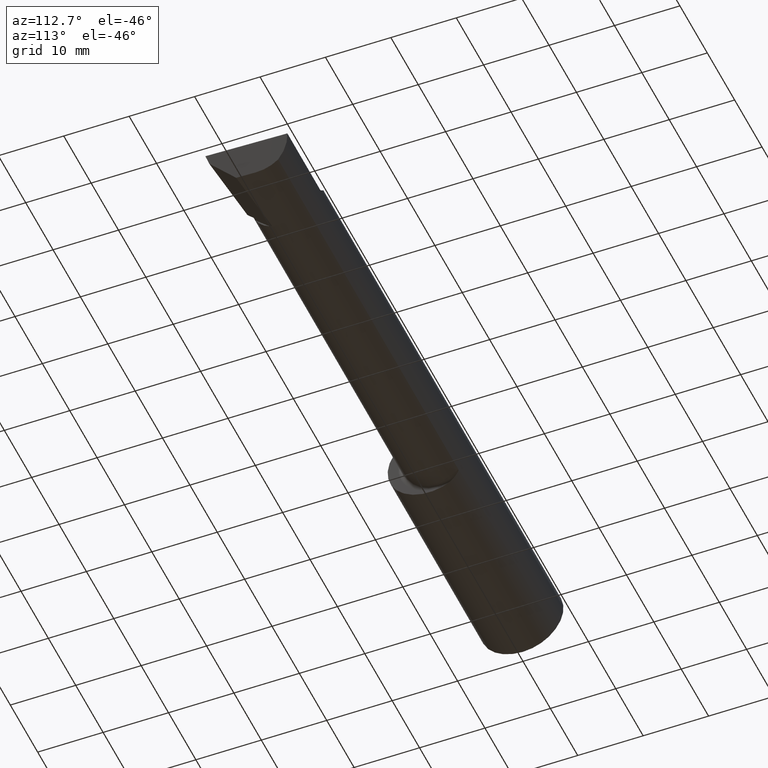
[diagram: clean part render]
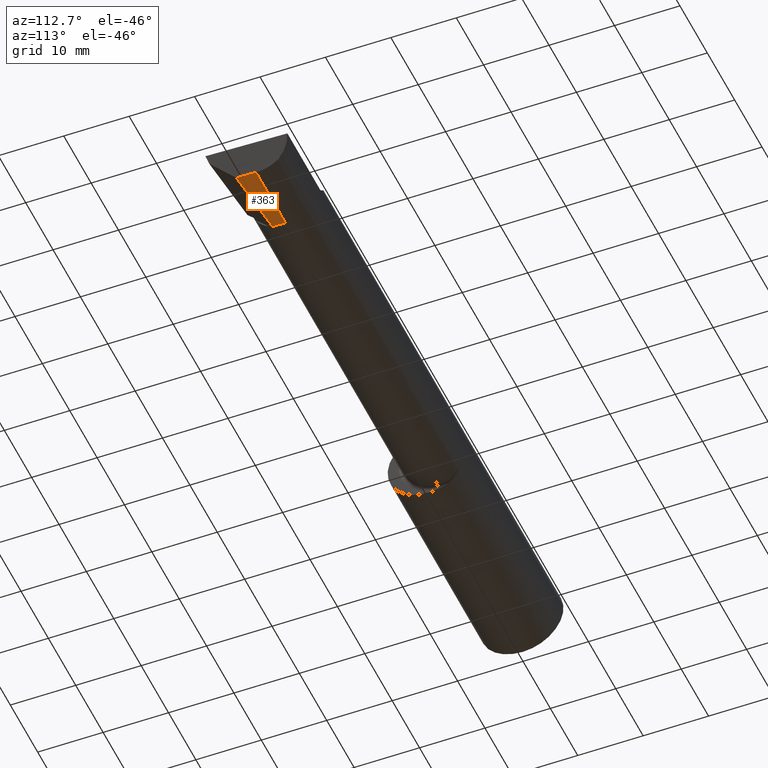
[diagram: same view with one face highlighted and labeled with its STEP entity id]
A machine part, auxiliary view. The second image highlights one B-rep face of the part: STEP entity #363.
In plain terms, the highlighted planar face has unit normal (-0, 0, 1).
Its self-contained STEP definition (entity closure, byte-faithful):
#8 = LINE ( 'NONE', #240, #511 ) ;
#14 = LINE ( 'NONE', #585, #606 ) ;
#36 = LINE ( 'NONE', #327, #710 ) ;
#45 = ORIENTED_EDGE ( 'NONE', *, *, #165, .F. ) ;
#85 = VERTEX_POINT ( 'NONE', #320 ) ;
#90 = VECTOR ( 'NONE', #500, 39.37007874015748143 ) ;
#142 = DIRECTION ( 'NONE',  ( -0.000000000000000000, 2.565624566557734573E-16, 1.000000000000000000 ) ) ;
#165 = EDGE_CURVE ( 'NONE', #360, #85, #36, .T. ) ;
#183 = DIRECTION ( 'NONE',  ( -0.000000000000000000, 1.000000000000000000, -2.565624566557734573E-16 ) ) ;
#190 = CARTESIAN_POINT ( 'NONE',  ( 3.966963271960172399, 0.05299999999999996381, -0.2131499999999999784 ) ) ;
#203 = CARTESIAN_POINT ( 'NONE',  ( 3.988460977461673274, -0.06683733097719073146, -0.2131499999999999506 ) ) ;
#240 = CARTESIAN_POINT ( 'NONE',  ( 3.544999999999999929, 0.05299999999999996381, -0.2131499999999999784 ) ) ;
#248 = DIRECTION ( 'NONE',  ( -0.02677973311239342791, 0.9996413586354002678, -2.562123829027519895E-16 ) ) ;
#249 = VERTEX_POINT ( 'NONE', #512 ) ;
#251 = DIRECTION ( 'NONE',  ( 0.000000000000000000, -1.000000000000000000, 2.565624566557734573E-16 ) ) ;
#271 = CARTESIAN_POINT ( 'NONE',  ( 3.544999999999999929, -0.02413689554465599241, -0.2131499999999999506 ) ) ;
#287 = ORIENTED_EDGE ( 'NONE', *, *, #487, .T. ) ;
#303 = PLANE ( 'NONE',  #407 ) ;
#320 = CARTESIAN_POINT ( 'NONE',  ( 3.544999999999999929, 0.05299999999999996381, -0.2131499999999999784 ) ) ;
#327 = CARTESIAN_POINT ( 'NONE',  ( 4.000000000000000000, 0.05299999999999996381, -0.2131499999999999784 ) ) ;
#334 = DIRECTION ( 'NONE',  ( -1.000000000000000000, -0.000000000000000000, -0.000000000000000000 ) ) ;
#360 = VERTEX_POINT ( 'NONE', #190 ) ;
#363 = ADVANCED_FACE ( 'NONE', ( #416 ), #303, .F. ) ;
#379 = EDGE_CURVE ( 'NONE', #249, #360, #14, .T. ) ;
#407 = AXIS2_PLACEMENT_3D ( 'NONE', #530, #142, #251 ) ;
#416 = FACE_OUTER_BOUND ( 'NONE', #605, .T. ) ;
#437 = EDGE_CURVE ( 'NONE', #478, #85, #8, .T. ) ;
#478 = VERTEX_POINT ( 'NONE', #271 ) ;
#487 = EDGE_CURVE ( 'NONE', #249, #478, #489, .T. ) ;
#489 = LINE ( 'NONE', #203, #90 ) ;
#500 = DIRECTION ( 'NONE',  ( -0.9953961983671787417, 0.09584575252022425884, -2.614745597736306358E-17 ) ) ;
#511 = VECTOR ( 'NONE', #183, 39.37007874015748143 ) ;
#512 = CARTESIAN_POINT ( 'NONE',  ( 3.970126340504450457, -0.06507190623553232856, -0.2131499999999999506 ) ) ;
#530 = CARTESIAN_POINT ( 'NONE',  ( 4.000000000000000000, 0.05299999999999996381, -0.2131499999999999784 ) ) ;
#585 = CARTESIAN_POINT ( 'NONE',  ( 3.966986964385320835, 0.05211560253549539501, -0.2131499999999999784 ) ) ;
#605 = EDGE_LOOP ( 'NONE', ( #667, #287, #759, #45 ) ) ;
#606 = VECTOR ( 'NONE', #248, 39.37007874015748143 ) ;
#667 = ORIENTED_EDGE ( 'NONE', *, *, #379, .F. ) ;
#710 = VECTOR ( 'NONE', #334, 39.37007874015748143 ) ;
#759 = ORIENTED_EDGE ( 'NONE', *, *, #437, .T. ) ;